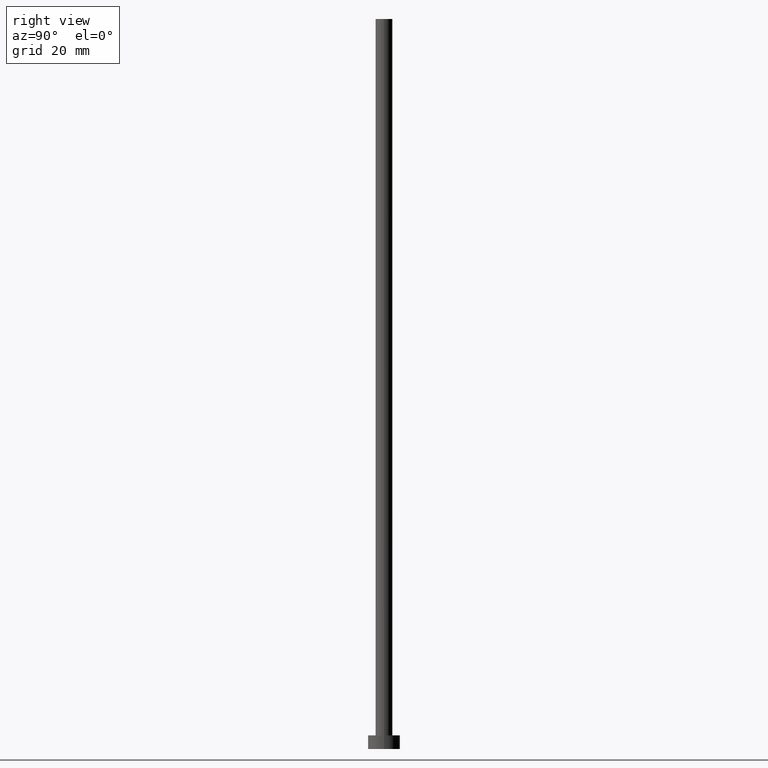
[diagram: clean part render]
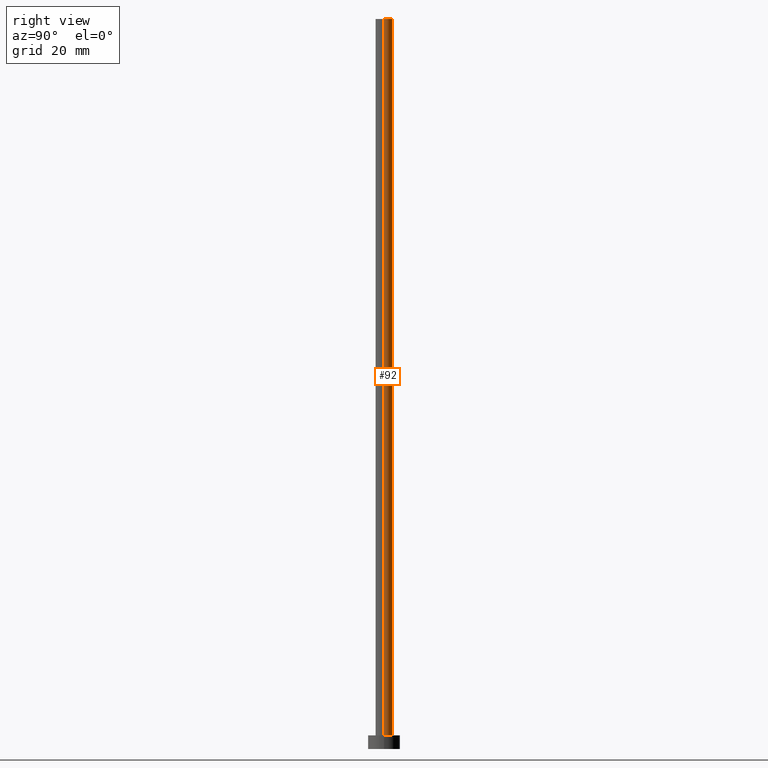
[diagram: same view with one face highlighted and labeled with its STEP entity id]
A machine part, right view. The second image highlights one B-rep face of the part: STEP entity #92.
In plain terms, the highlighted cylindrical surface (edge-blend (fillet) strip) has radius 1.85 mm, axis along (-0, -0, -1).
Its self-contained STEP definition (entity closure, byte-faithful):
#1 = VECTOR ( 'NONE', #9, 1000.000000000000000 ) ;
#8 = AXIS2_PLACEMENT_3D ( 'NONE', #175, #105, #83 ) ;
#9 = DIRECTION ( 'NONE',  ( -0.000000000000000000, -0.000000000000000000, -1.000000000000000000 ) ) ;
#12 = LINE ( 'NONE', #159, #1 ) ;
#19 = EDGE_CURVE ( 'NONE', #48, #199, #144, .T. ) ;
#21 = VERTEX_POINT ( 'NONE', #160 ) ;
#34 = ORIENTED_EDGE ( 'NONE', *, *, #19, .T. ) ;
#39 = CIRCLE ( 'NONE', #183, 1.850000000000000089 ) ;
#48 = VERTEX_POINT ( 'NONE', #242 ) ;
#52 = DIRECTION ( 'NONE',  ( -0.000000000000000000, -0.000000000000000000, -1.000000000000000000 ) ) ;
#57 = ORIENTED_EDGE ( 'NONE', *, *, #157, .F. ) ;
#65 = CARTESIAN_POINT ( 'NONE',  ( -1.850000000000000089, 0.000000000000000000, 160.0000000000000000 ) ) ;
#83 = DIRECTION ( 'NONE',  ( 1.000000000000000000, 0.000000000000000000, 0.000000000000000000 ) ) ;
#84 = DIRECTION ( 'NONE',  ( 1.000000000000000000, 0.000000000000000000, 0.000000000000000000 ) ) ;
#92 = ADVANCED_FACE ( 'NONE', ( #248 ), #108, .T. ) ;
#104 = DIRECTION ( 'NONE',  ( 0.000000000000000000, 0.000000000000000000, 1.000000000000000000 ) ) ;
#105 = DIRECTION ( 'NONE',  ( 0.000000000000000000, 0.000000000000000000, 1.000000000000000000 ) ) ;
#108 = CYLINDRICAL_SURFACE ( 'NONE', #110, 1.850000000000000089 ) ;
#110 = AXIS2_PLACEMENT_3D ( 'NONE', #153, #52, #179 ) ;
#111 = ORIENTED_EDGE ( 'NONE', *, *, #139, .T. ) ;
#123 = EDGE_CURVE ( 'NONE', #21, #215, #39, .T. ) ;
#139 = EDGE_CURVE ( 'NONE', #21, #48, #12, .T. ) ;
#140 = ORIENTED_EDGE ( 'NONE', *, *, #123, .F. ) ;
#144 = CIRCLE ( 'NONE', #8, 1.850000000000000089 ) ;
#153 = CARTESIAN_POINT ( 'NONE',  ( 0.000000000000000000, 0.000000000000000000, 160.0000000000000000 ) ) ;
#154 = EDGE_LOOP ( 'NONE', ( #140, #111, #34, #57 ) ) ;
#157 = EDGE_CURVE ( 'NONE', #215, #199, #231, .T. ) ;
#158 = CARTESIAN_POINT ( 'NONE',  ( -1.850000000000000089, 0.000000000000000000, 160.0000000000000000 ) ) ;
#159 = CARTESIAN_POINT ( 'NONE',  ( 1.850000000000000089, 2.265596578422603100E-16, 160.0000000000000000 ) ) ;
#160 = CARTESIAN_POINT ( 'NONE',  ( 1.850000000000000089, 2.265596578422603100E-16, 160.0000000000000000 ) ) ;
#174 = DIRECTION ( 'NONE',  ( -0.000000000000000000, -0.000000000000000000, -1.000000000000000000 ) ) ;
#175 = CARTESIAN_POINT ( 'NONE',  ( 0.000000000000000000, 0.000000000000000000, 3.000000000000000000 ) ) ;
#179 = DIRECTION ( 'NONE',  ( -1.000000000000000000, 0.000000000000000000, 0.000000000000000000 ) ) ;
#182 = CARTESIAN_POINT ( 'NONE',  ( 0.000000000000000000, 0.000000000000000000, 160.0000000000000000 ) ) ;
#183 = AXIS2_PLACEMENT_3D ( 'NONE', #182, #104, #84 ) ;
#199 = VERTEX_POINT ( 'NONE', #235 ) ;
#215 = VERTEX_POINT ( 'NONE', #158 ) ;
#231 = LINE ( 'NONE', #65, #249 ) ;
#235 = CARTESIAN_POINT ( 'NONE',  ( -1.850000000000000089, 0.000000000000000000, 3.000000000000000000 ) ) ;
#242 = CARTESIAN_POINT ( 'NONE',  ( 1.850000000000000089, 2.265596578422603100E-16, 3.000000000000000000 ) ) ;
#248 = FACE_OUTER_BOUND ( 'NONE', #154, .T. ) ;
#249 = VECTOR ( 'NONE', #174, 1000.000000000000000 ) ;